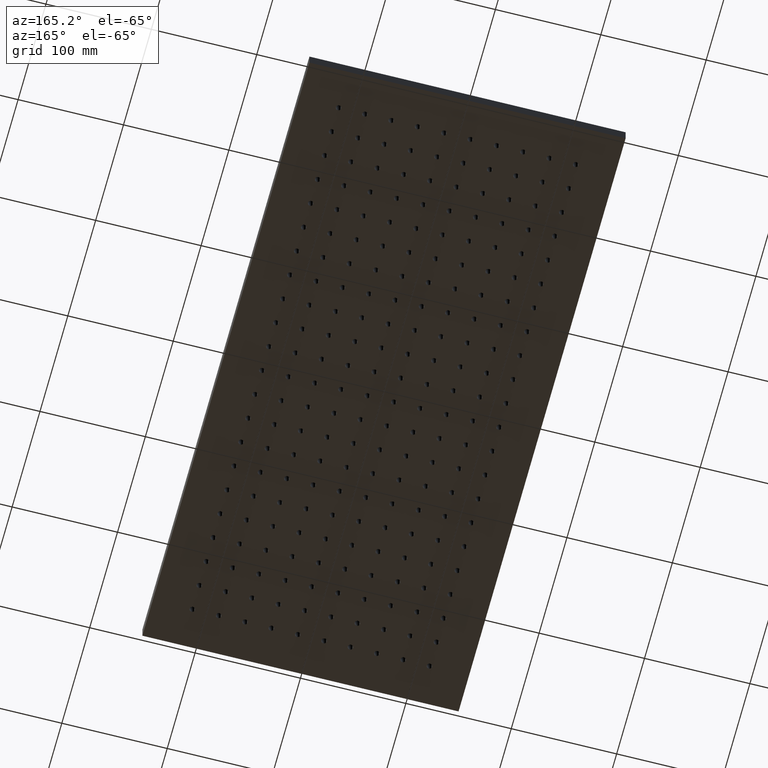
[diagram: clean part render]
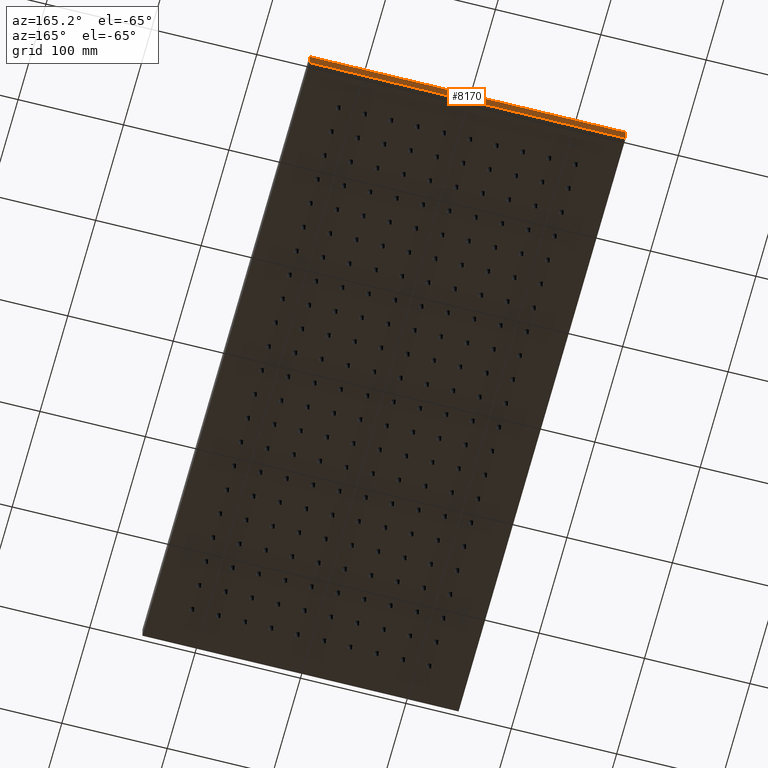
[diagram: same view with one face highlighted and labeled with its STEP entity id]
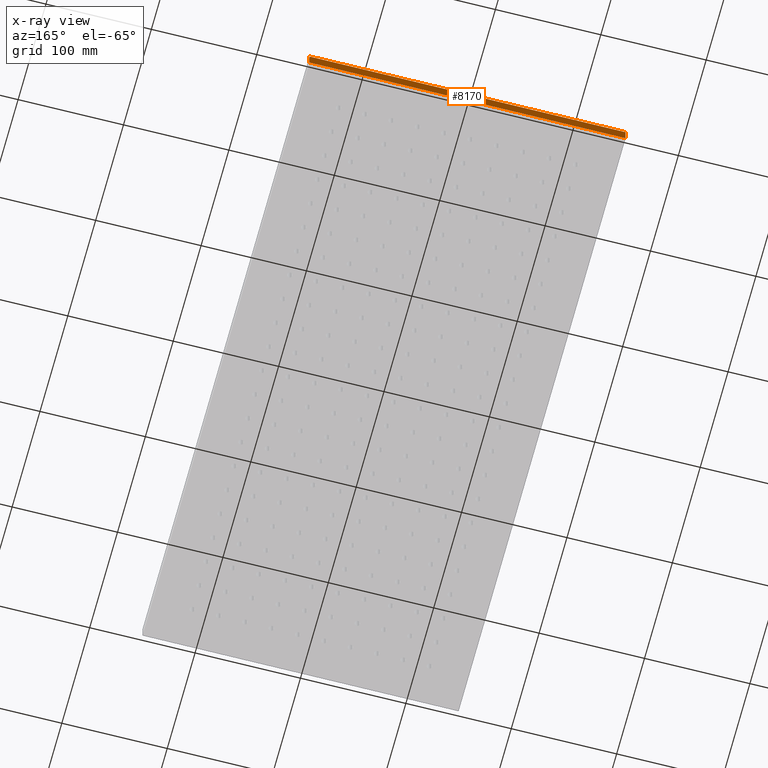
[diagram: x-ray of the same camera — body ghosted, the highlighted face saturated]
A machine part, auxiliary view. The second image highlights one B-rep face of the part: STEP entity #8170.
The next image is the same camera in x-ray: the body ghosted, the highlighted face saturated — about 0% of this face is hidden behind the body in this view.
In plain terms, the highlighted planar face has unit normal (0, -1, 0).
Its self-contained STEP definition (entity closure, byte-faithful):
#23 = CARTESIAN_POINT ( 'NONE',  ( -150.0000000000000900, 300.0000000000000600, 13.00000000000000000 ) ) ;
#837 = EDGE_CURVE ( 'NONE', #858, #10653, #16197, .T. ) ;
#858 = VERTEX_POINT ( 'NONE', #23 ) ;
#1678 = CARTESIAN_POINT ( 'NONE',  ( 149.9999999999999100, 300.0000000000000600, 0.0000000000000000000 ) ) ;
#1842 = DIRECTION ( 'NONE',  ( -1.000000000000000000, -0.0000000000000000000, -0.0000000000000000000 ) ) ;
#2676 = VECTOR ( 'NONE', #14050, 1000.000000000000000 ) ;
#3784 = VECTOR ( 'NONE', #8820, 1000.000000000000000 ) ;
#4142 = CARTESIAN_POINT ( 'NONE',  ( -150.0000000000000900, 300.0000000000000600, 0.0000000000000000000 ) ) ;
#4548 = CARTESIAN_POINT ( 'NONE',  ( 149.9999999999999100, 300.0000000000000600, 13.00000000000000000 ) ) ;
#5121 = ORIENTED_EDGE ( 'NONE', *, *, #7214, .T. ) ;
#5346 = EDGE_CURVE ( 'NONE', #9424, #6175, #7565, .T. ) ;
#5937 = DIRECTION ( 'NONE',  ( 0.0000000000000000000, -1.000000000000000000, 0.0000000000000000000 ) ) ;
#6072 = CARTESIAN_POINT ( 'NONE',  ( 149.9999999999999100, 300.0000000000000600, 13.00000000000000000 ) ) ;
#6175 = VERTEX_POINT ( 'NONE', #1678 ) ;
#6420 = LINE ( 'NONE', #4142, #16148 ) ;
#6947 = EDGE_LOOP ( 'NONE', ( #5121, #14366, #9844, #10946 ) ) ;
#7214 = EDGE_CURVE ( 'NONE', #6175, #10653, #6420, .T. ) ;
#7422 = CARTESIAN_POINT ( 'NONE',  ( -150.0000000000000900, 300.0000000000000600, 0.0000000000000000000 ) ) ;
#7565 = LINE ( 'NONE', #4548, #3784 ) ;
#7679 = CARTESIAN_POINT ( 'NONE',  ( -150.0000000000000900, 300.0000000000000600, 13.00000000000000000 ) ) ;
#8170 = ADVANCED_FACE ( 'NONE', ( #13522 ), #9649, .F. ) ;
#8518 = AXIS2_PLACEMENT_3D ( 'NONE', #10982, #5937, #14799 ) ;
#8820 = DIRECTION ( 'NONE',  ( -0.0000000000000000000, -0.0000000000000000000, -1.000000000000000000 ) ) ;
#9247 = EDGE_CURVE ( 'NONE', #9424, #858, #15910, .T. ) ;
#9424 = VERTEX_POINT ( 'NONE', #6072 ) ;
#9649 = PLANE ( 'NONE',  #8518 ) ;
#9844 = ORIENTED_EDGE ( 'NONE', *, *, #9247, .F. ) ;
#10653 = VERTEX_POINT ( 'NONE', #7422 ) ;
#10716 = CARTESIAN_POINT ( 'NONE',  ( -150.0000000000000900, 300.0000000000000600, 13.00000000000000000 ) ) ;
#10946 = ORIENTED_EDGE ( 'NONE', *, *, #5346, .T. ) ;
#10982 = CARTESIAN_POINT ( 'NONE',  ( -150.0000000000000900, 300.0000000000000600, 13.00000000000000000 ) ) ;
#12523 = VECTOR ( 'NONE', #1842, 1000.000000000000000 ) ;
#13013 = DIRECTION ( 'NONE',  ( -1.000000000000000000, -0.0000000000000000000, -0.0000000000000000000 ) ) ;
#13522 = FACE_OUTER_BOUND ( 'NONE', #6947, .T. ) ;
#14050 = DIRECTION ( 'NONE',  ( -0.0000000000000000000, -0.0000000000000000000, -1.000000000000000000 ) ) ;
#14366 = ORIENTED_EDGE ( 'NONE', *, *, #837, .F. ) ;
#14799 = DIRECTION ( 'NONE',  ( 0.0000000000000000000, -0.0000000000000000000, -1.000000000000000000 ) ) ;
#15910 = LINE ( 'NONE', #10716, #12523 ) ;
#16148 = VECTOR ( 'NONE', #13013, 1000.000000000000000 ) ;
#16197 = LINE ( 'NONE', #7679, #2676 ) ;